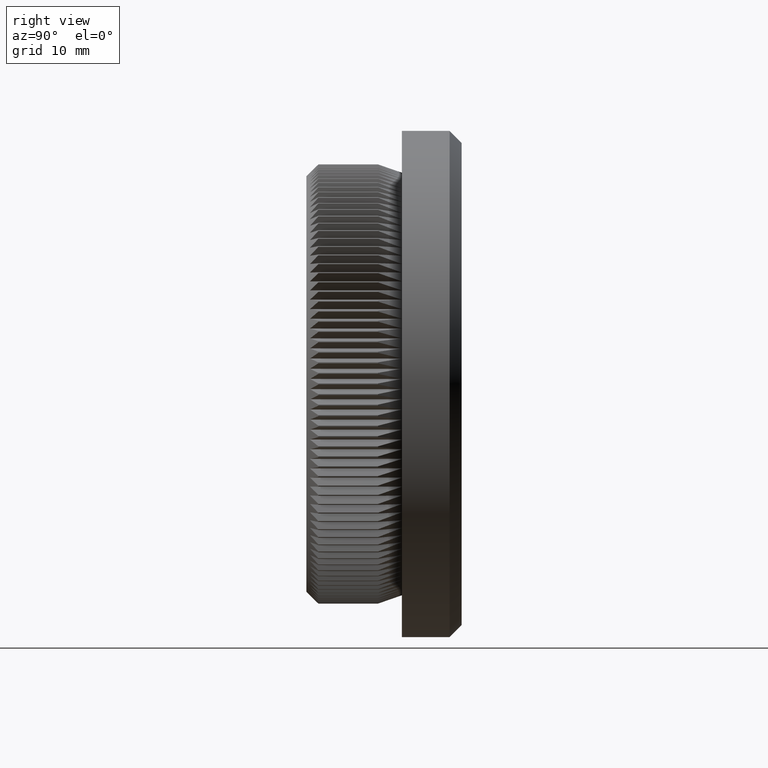
[diagram: clean part render]
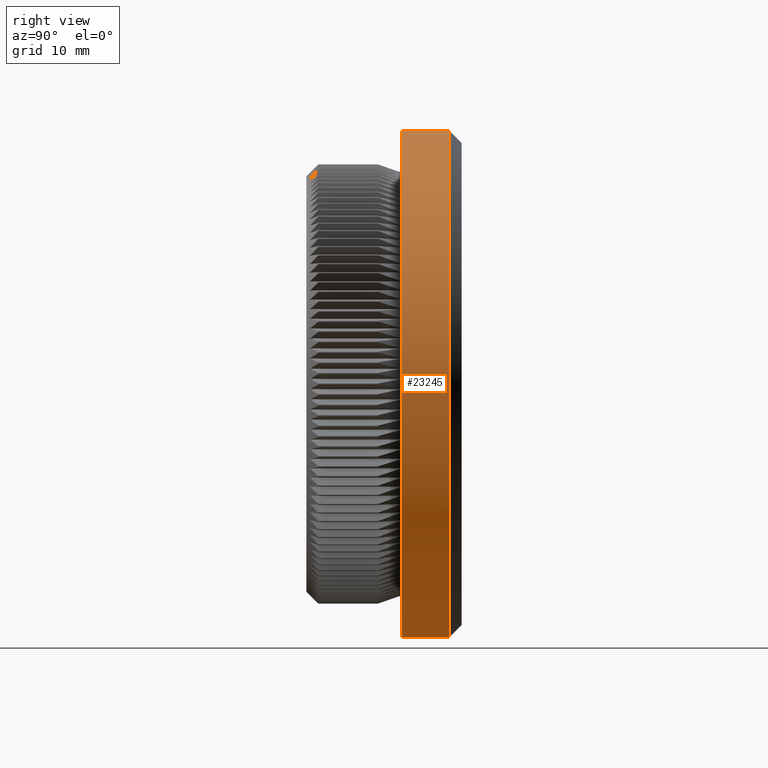
[diagram: same view with one face highlighted and labeled with its STEP entity id]
A machine part, right view. The second image highlights one B-rep face of the part: STEP entity #23245.
In plain terms, the highlighted cylindrical surface (partial cylindrical patch) has radius 21.2 mm, axis along (-0, -1, -0).
Its self-contained STEP definition (entity closure, byte-faithful):
#176 = LINE ( 'NONE', #9045, #14195 ) ;
#536 = CIRCLE ( 'NONE', #30279, 21.19999999999999900 ) ;
#1149 = CARTESIAN_POINT ( 'NONE',  ( 0.0000000000000000000, 8.000000000000000000, 0.0000000000000000000 ) ) ;
#1676 = EDGE_CURVE ( 'NONE', #22314, #27898, #8311, .T. ) ;
#1736 = CARTESIAN_POINT ( 'NONE',  ( 0.0000000000000000000, 0.0000000000000000000, -21.19999999999999900 ) ) ;
#3731 = EDGE_CURVE ( 'NONE', #22728, #26483, #176, .T. ) ;
#6471 = CIRCLE ( 'NONE', #18050, 21.19999999999999900 ) ;
#7369 = ORIENTED_EDGE ( 'NONE', *, *, #1676, .F. ) ;
#8311 = LINE ( 'NONE', #1736, #27492 ) ;
#8565 = ORIENTED_EDGE ( 'NONE', *, *, #21565, .F. ) ;
#9045 = CARTESIAN_POINT ( 'NONE',  ( 2.596251214192388800E-015, 0.0000000000000000000, 21.19999999999999900 ) ) ;
#10229 = DIRECTION ( 'NONE',  ( 0.0000000000000000000, 0.0000000000000000000, -1.000000000000000000 ) ) ;
#10274 = CARTESIAN_POINT ( 'NONE',  ( 2.596251214192388800E-015, 8.000000000000000000, 21.19999999999999900 ) ) ;
#11533 = CARTESIAN_POINT ( 'NONE',  ( 0.0000000000000000000, 11.99999999999999800, 0.0000000000000000000 ) ) ;
#12766 = CARTESIAN_POINT ( 'NONE',  ( 0.0000000000000000000, 0.0000000000000000000, 0.0000000000000000000 ) ) ;
#14086 = AXIS2_PLACEMENT_3D ( 'NONE', #12766, #29301, #15139 ) ;
#14195 = VECTOR ( 'NONE', #27505, 1000.000000000000000 ) ;
#15139 = DIRECTION ( 'NONE',  ( 0.0000000000000000000, 0.0000000000000000000, -1.000000000000000000 ) ) ;
#18050 = AXIS2_PLACEMENT_3D ( 'NONE', #1149, #24339, #10229 ) ;
#18351 = DIRECTION ( 'NONE',  ( -0.0000000000000000000, -1.000000000000000000, -0.0000000000000000000 ) ) ;
#18948 = CYLINDRICAL_SURFACE ( 'NONE', #14086, 21.19999999999999900 ) ;
#19400 = EDGE_LOOP ( 'NONE', ( #29086, #30397, #8565, #7369 ) ) ;
#20988 = CARTESIAN_POINT ( 'NONE',  ( 2.596251214192388800E-015, 11.99999999999999800, 21.19999999999999900 ) ) ;
#21565 = EDGE_CURVE ( 'NONE', #27898, #26483, #6471, .T. ) ;
#21785 = EDGE_CURVE ( 'NONE', #22314, #22728, #536, .T. ) ;
#22314 = VERTEX_POINT ( 'NONE', #23102 ) ;
#22728 = VERTEX_POINT ( 'NONE', #20988 ) ;
#23102 = CARTESIAN_POINT ( 'NONE',  ( 0.0000000000000000000, 11.99999999999999800, -21.19999999999999900 ) ) ;
#23245 = ADVANCED_FACE ( 'NONE', ( #28174 ), #18948, .T. ) ;
#24339 = DIRECTION ( 'NONE',  ( -0.0000000000000000000, -1.000000000000000000, -0.0000000000000000000 ) ) ;
#25644 = DIRECTION ( 'NONE',  ( -0.0000000000000000000, -1.000000000000000000, -0.0000000000000000000 ) ) ;
#26483 = VERTEX_POINT ( 'NONE', #10274 ) ;
#27492 = VECTOR ( 'NONE', #18351, 1000.000000000000000 ) ;
#27505 = DIRECTION ( 'NONE',  ( -0.0000000000000000000, -1.000000000000000000, -0.0000000000000000000 ) ) ;
#27898 = VERTEX_POINT ( 'NONE', #30232 ) ;
#28174 = FACE_OUTER_BOUND ( 'NONE', #19400, .T. ) ;
#29086 = ORIENTED_EDGE ( 'NONE', *, *, #21785, .T. ) ;
#29301 = DIRECTION ( 'NONE',  ( -0.0000000000000000000, -1.000000000000000000, -0.0000000000000000000 ) ) ;
#30232 = CARTESIAN_POINT ( 'NONE',  ( 0.0000000000000000000, 8.000000000000000000, -21.19999999999999900 ) ) ;
#30279 = AXIS2_PLACEMENT_3D ( 'NONE', #11533, #25644, #30417 ) ;
#30397 = ORIENTED_EDGE ( 'NONE', *, *, #3731, .T. ) ;
#30417 = DIRECTION ( 'NONE',  ( 0.0000000000000000000, 0.0000000000000000000, 1.000000000000000000 ) ) ;